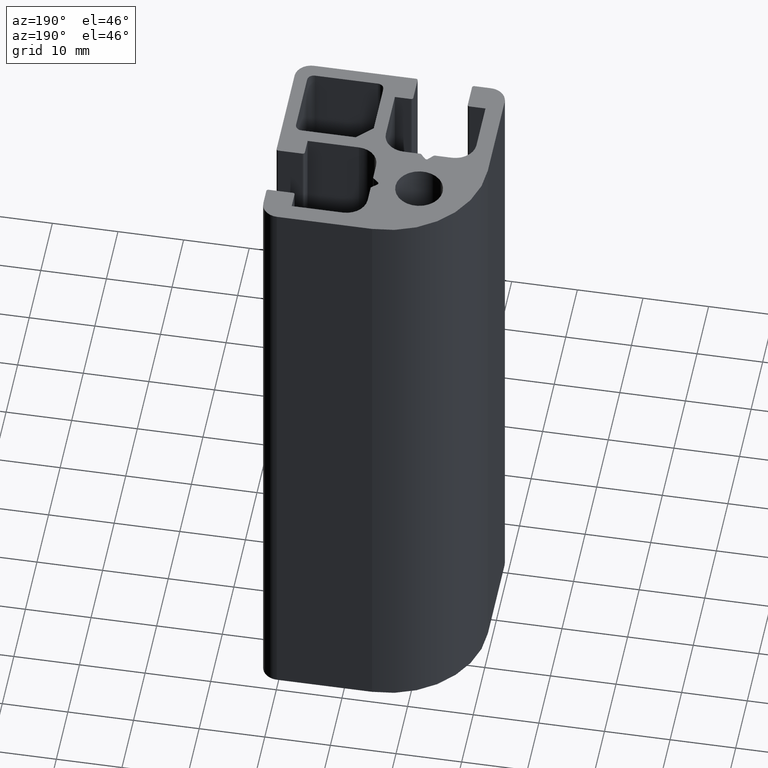
[diagram: clean part render]
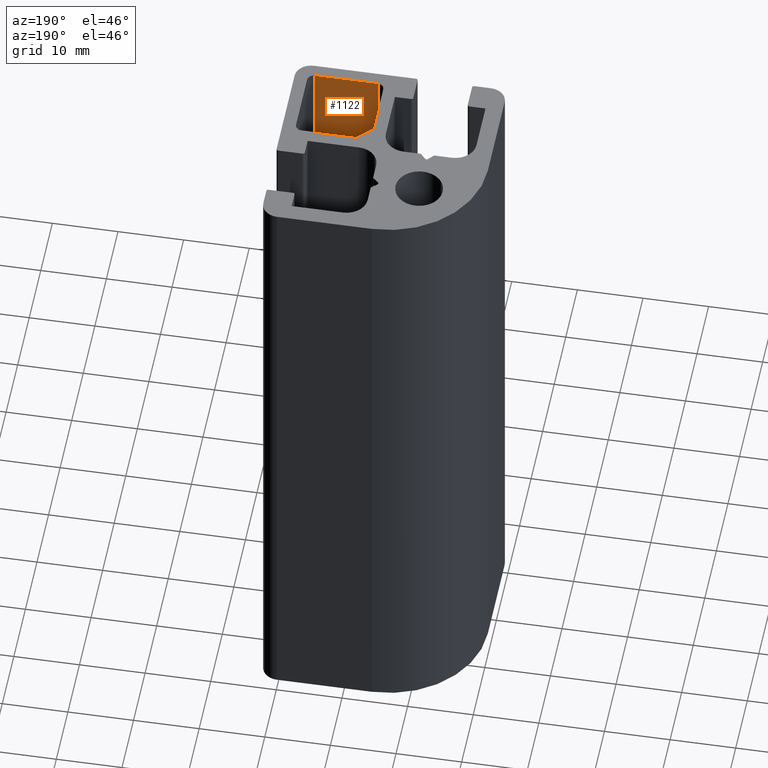
[diagram: same view with one face highlighted and labeled with its STEP entity id]
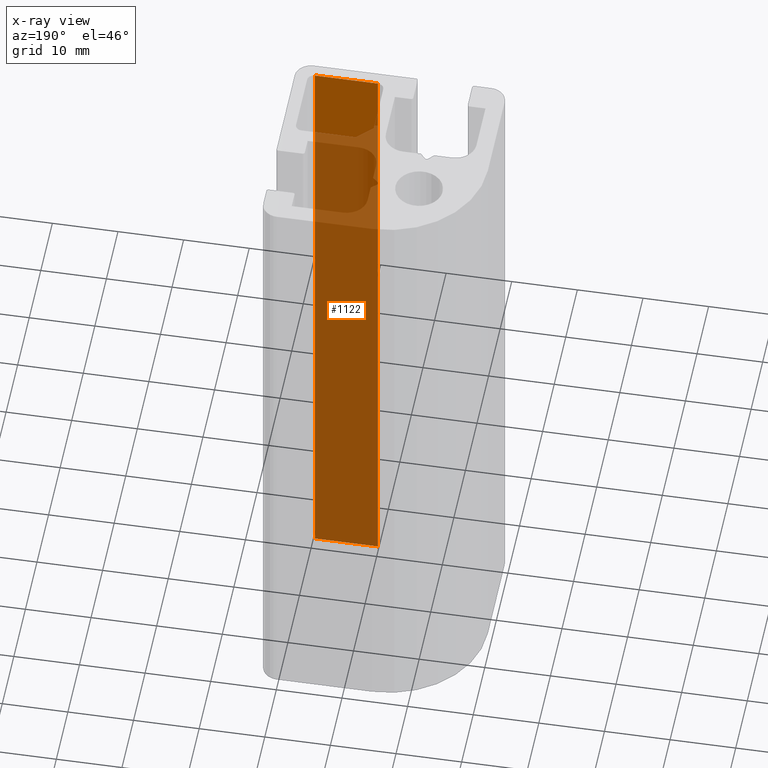
[diagram: x-ray of the same camera — body ghosted, the highlighted face saturated]
A machine part, auxiliary view. The second image highlights one B-rep face of the part: STEP entity #1122.
The next image is the same camera in x-ray: the body ghosted, the highlighted face saturated — about 88% of this face is hidden behind the body in this view.
In plain terms, the highlighted planar face has unit normal (0, -1, 0).
Its self-contained STEP definition (entity closure, byte-faithful):
#19=PLANE('',#1191);
#48=LINE('',#1639,#166);
#63=LINE('',#1678,#181);
#64=LINE('',#1680,#182);
#65=LINE('',#1681,#183);
#166=VECTOR('',#1298,100.);
#181=VECTOR('',#1335,100.);
#182=VECTOR('',#1338,9.59999998680799);
#183=VECTOR('',#1339,9.59999998680799);
#297=FACE_OUTER_BOUND('',#357,.T.);
#357=EDGE_LOOP('',(#778,#779,#780,#781));
#466=VERTEX_POINT('',#1635);
#468=VERTEX_POINT('',#1638);
#480=VERTEX_POINT('',#1674);
#481=VERTEX_POINT('',#1676);
#581=EDGE_CURVE('',#468,#466,#48,.T.);
#601=EDGE_CURVE('',#481,#480,#63,.T.);
#602=EDGE_CURVE('',#480,#466,#64,.T.);
#603=EDGE_CURVE('',#468,#481,#65,.T.);
#778=ORIENTED_EDGE('',*,*,#602,.F.);
#779=ORIENTED_EDGE('',*,*,#601,.F.);
#780=ORIENTED_EDGE('',*,*,#603,.F.);
#781=ORIENTED_EDGE('',*,*,#581,.T.);
#1122=ADVANCED_FACE('',(#297),#19,.F.);
#1191=AXIS2_PLACEMENT_3D('',#1679,#1336,#1337);
#1298=DIRECTION('',(0.,0.,1.));
#1335=DIRECTION('',(0.,0.,1.));
#1336=DIRECTION('center_axis',(4.62592927562829E-16,-1.,0.));
#1337=DIRECTION('ref_axis',(1.,3.5527136788005E-16,0.));
#1338=DIRECTION('',(-1.,-4.62592927562829E-16,0.));
#1339=DIRECTION('',(1.,4.62592927562829E-16,0.));
#1635=CARTESIAN_POINT('',(9.900000006596,-20.5,100.));
#1638=CARTESIAN_POINT('',(9.900000006596,-20.5,0.));
#1639=CARTESIAN_POINT('',(9.900000006596,-20.5,0.));
#1674=CARTESIAN_POINT('',(19.499999993404,-20.5,100.));
#1676=CARTESIAN_POINT('',(19.499999993404,-20.5,0.));
#1678=CARTESIAN_POINT('',(19.499999993404,-20.5,0.));
#1679=CARTESIAN_POINT('Origin',(9.900000006596,-20.5,0.));
#1680=CARTESIAN_POINT('',(8.200000003298,-20.5,100.));
#1681=CARTESIAN_POINT('',(8.200000003298,-20.5,0.));